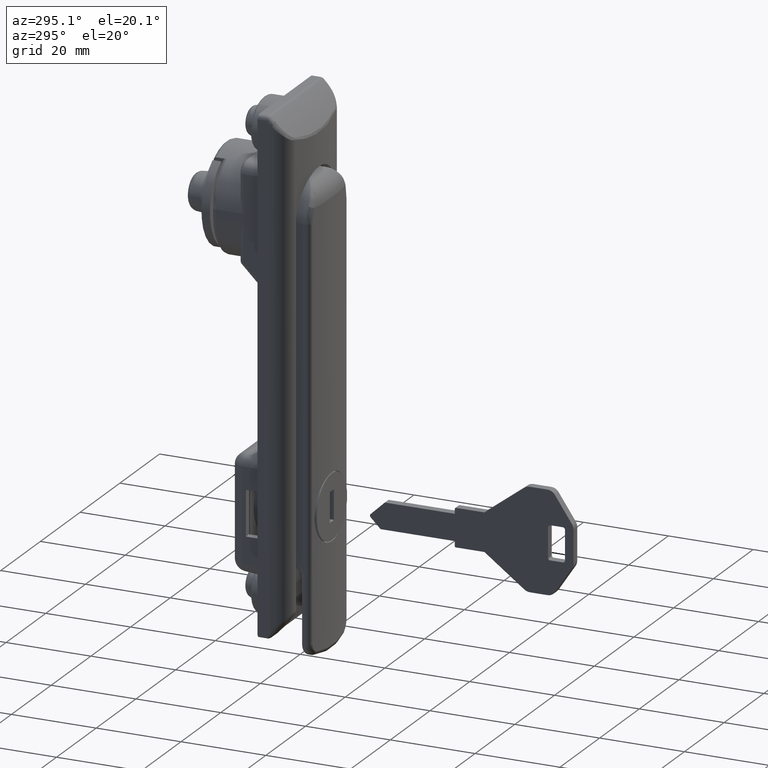
[diagram: clean part render]
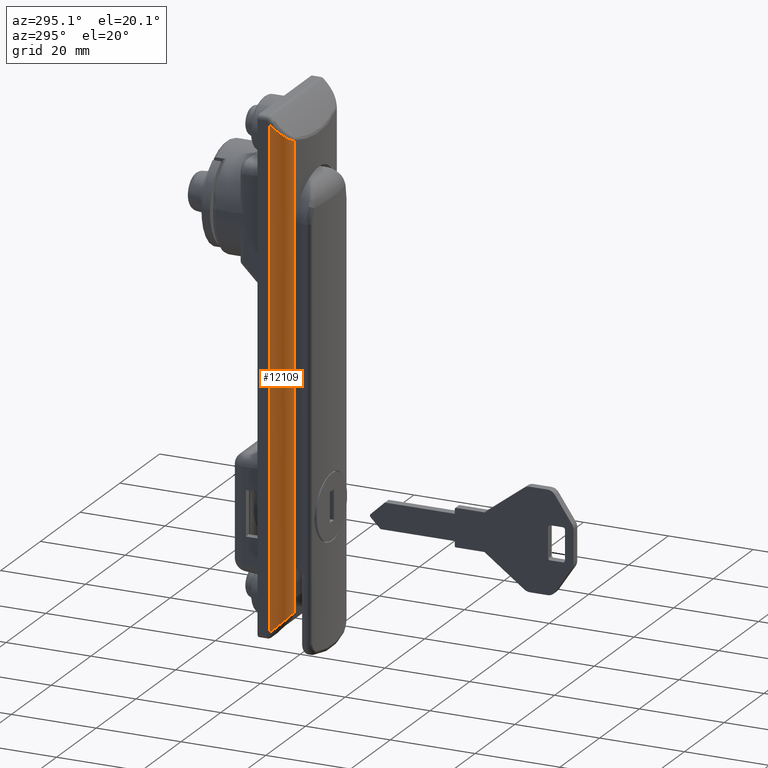
[diagram: same view with one face highlighted and labeled with its STEP entity id]
A machine part, auxiliary view. The second image highlights one B-rep face of the part: STEP entity #12109.
In plain terms, the highlighted cylindrical surface (edge-blend (fillet) strip) has radius 4.25 mm, axis along (0, 0, 1).
Its self-contained STEP definition (entity closure, byte-faithful):
#1137 = CARTESIAN_POINT ( 'NONE',  ( -23.57530118722025100, 10.49327354259759900, -88.17039646984149200 ) ) ;
#1138 = DIRECTION ( 'NONE',  ( 0.0000000000000000000, 0.0000000000000000000, -1.000000000000000000 ) ) ;
#1139 = VECTOR ( 'NONE', #1138, 1000.000000000000000 ) ;
#1140 = CARTESIAN_POINT ( 'NONE',  ( -23.57530118722025100, 10.49327354259759900, -965.0000000000000000 ) ) ;
#1141 = LINE ( 'NONE', #1140, #1139 ) ;
#1143 = CARTESIAN_POINT ( 'NONE',  ( -23.57530118722025100, 10.49327354259759900, 19.17039646983064900 ) ) ;
#11851 = VERTEX_POINT ( 'NONE', #16829 ) ;
#11852 = VERTEX_POINT ( 'NONE', #16828 ) ;
#12052 = EDGE_CURVE ( 'NONE', #11851, #11852, #17547, .T. ) ;
#12109 = ADVANCED_FACE ( 'NONE', ( #17726 ), #17629, .T. ) ;
#12113 = EDGE_LOOP ( 'NONE', ( #12115, #12116, #12118, #12119 ) ) ;
#12115 = ORIENTED_EDGE ( 'NONE', *, *, #12052, .F. ) ;
#12116 = ORIENTED_EDGE ( 'NONE', *, *, #12117, .T. ) ;
#12117 = EDGE_CURVE ( 'NONE', #11851, #21094, #17836, .T. ) ;
#12118 = ORIENTED_EDGE ( 'NONE', *, *, #21093, .F. ) ;
#12119 = ORIENTED_EDGE ( 'NONE', *, *, #12122, .T. ) ;
#12122 = EDGE_CURVE ( 'NONE', #21091, #11852, #17843, .T. ) ;
#16828 = CARTESIAN_POINT ( 'NONE',  ( -19.39080068645860100, 14.00000000000000000, 23.18500777389960300 ) ) ;
#16829 = CARTESIAN_POINT ( 'NONE',  ( -19.39080068645860100, 14.00000000000000000, -92.18500777391041400 ) ) ;
#17544 = DIRECTION ( 'NONE',  ( 0.0000000000000000000, 0.0000000000000000000, 1.000000000000000000 ) ) ;
#17545 = VECTOR ( 'NONE', #17544, 1000.000000000000000 ) ;
#17546 = CARTESIAN_POINT ( 'NONE',  ( -19.39080068645860100, 14.00000000000000000, 20.56078290761319800 ) ) ;
#17547 = LINE ( 'NONE', #17546, #17545 ) ;
#17626 = DIRECTION ( 'NONE',  ( 1.000000000000000000, 0.0000000000000000000, 0.0000000000000000000 ) ) ;
#17627 = DIRECTION ( 'NONE',  ( 0.0000000000000000000, 0.0000000000000000000, 1.000000000000000000 ) ) ;
#17628 = AXIS2_PLACEMENT_3D ( 'NONE', #17725, #17627, #17626 ) ;
#17629 = CYLINDRICAL_SURFACE ( 'NONE', #17628, 4.250000000000000000 ) ;
#17725 = CARTESIAN_POINT ( 'NONE',  ( -19.39080068645860100, 9.750000000000000000, -965.0000000000000000 ) ) ;
#17726 = FACE_OUTER_BOUND ( 'NONE', #12113, .T. ) ;
#17736 = CARTESIAN_POINT ( 'NONE',  ( -19.39080068645860100, 14.00000000000000000, 23.18500777389960300 ) ) ;
#17737 = CARTESIAN_POINT ( 'NONE',  ( -19.86189103008241500, 13.99999999999999800, 22.80281732134584200 ) ) ;
#17738 = CARTESIAN_POINT ( 'NONE',  ( -20.31514022013296000, 13.92377458077721300, 22.41566502509876100 ) ) ;
#17739 = CARTESIAN_POINT ( 'NONE',  ( -20.96988927472122600, 13.70247437519620000, 21.82786959137136800 ) ) ;
#17740 = CARTESIAN_POINT ( 'NONE',  ( -21.18209323709717800, 13.61091536866677400, 21.63237253427319100 ) ) ;
#17741 = CARTESIAN_POINT ( 'NONE',  ( -21.58828543300062800, 13.39505929645810900, 21.24911422026432800 ) ) ;
#17742 = CARTESIAN_POINT ( 'NONE',  ( -21.78333737550884700, 13.27044951550170300, 21.06039427926945300 ) ) ;
#17743 = CARTESIAN_POINT ( 'NONE',  ( -22.15711664230133900, 12.98501045316666400, 20.69045291302422000 ) ) ;
#17744 = CARTESIAN_POINT ( 'NONE',  ( -22.33678879186818700, 12.82327668294235900, 20.50823866341987800 ) ) ;
#17745 = CARTESIAN_POINT ( 'NONE',  ( -22.67391715109648900, 12.46017006233106400, 20.15902335442187300 ) ) ;
#17746 = CARTESIAN_POINT ( 'NONE',  ( -22.82903307428881900, 12.26168852318555500, 19.99449278256544100 ) ) ;
#17747 = CARTESIAN_POINT ( 'NONE',  ( -23.10941266699964200, 11.82411333547696200, 19.69186873087628300 ) ) ;
#17748 = CARTESIAN_POINT ( 'NONE',  ( -23.23607330387387600, 11.58140819865317400, 19.55217828795844800 ) ) ;
#17749 = CARTESIAN_POINT ( 'NONE',  ( -23.44231375410948500, 11.06355218967198100, 19.32186588850131800 ) ) ;
#17750 = CARTESIAN_POINT ( 'NONE',  ( -23.52282482011764100, 10.78870634335569200, 19.23032368122743200 ) ) ;
#17751 = CARTESIAN_POINT ( 'NONE',  ( -23.57530118722025100, 10.49327354259759900, 19.17039646983064900 ) ) ;
#17756 = CARTESIAN_POINT ( 'NONE',  ( -23.57530118722025100, 10.49327354259759900, -88.17039646984149200 ) ) ;
#17757 = CARTESIAN_POINT ( 'NONE',  ( -23.52285804401962500, 10.78851929857807200, -88.23028574004857200 ) ) ;
#17758 = CARTESIAN_POINT ( 'NONE',  ( -23.44224771184143900, 11.06400672587118300, -88.32194614805459300 ) ) ;
#17759 = CARTESIAN_POINT ( 'NONE',  ( -23.28676315785112300, 11.45398374120195200, -88.49556873850451700 ) ) ;
#17760 = CARTESIAN_POINT ( 'NONE',  ( -23.22883440713878800, 11.58037871080186300, -88.55982540278586200 ) ) ;
#17761 = CARTESIAN_POINT ( 'NONE',  ( -23.10470065902877200, 11.82068492527910300, -88.69624542490682000 ) ) ;
#17762 = CARTESIAN_POINT ( 'NONE',  ( -23.03824442203168500, 11.93533212029634200, -88.76869302507880400 ) ) ;
#17763 = CARTESIAN_POINT ( 'NONE',  ( -22.82687091705975400, 12.26475853533839800, -88.99680661979402900 ) ) ;
#17764 = CARTESIAN_POINT ( 'NONE',  ( -22.66863166608348800, 12.46643322996741600, -89.16456724342120300 ) ) ;
#17765 = CARTESIAN_POINT ( 'NONE',  ( -22.33282753381833200, 12.82695684943327500, -89.51227111375170900 ) ) ;
#17833 = CARTESIAN_POINT ( 'NONE',  ( -20.31298589977895800, 13.92361731942010100, -91.41737761025233100 ) ) ;
#17834 = CARTESIAN_POINT ( 'NONE',  ( -19.86253578521249700, 13.99999999999999800, -91.80229423855885800 ) ) ;
#17835 = CARTESIAN_POINT ( 'NONE',  ( -19.39080068645860100, 14.00000000000000000, -92.18500777391041400 ) ) ;
#17836 = B_SPLINE_CURVE_WITH_KNOTS ( 'NONE', 3,
 ( #17835, #17834, #17833, #17841, #17840, #17839, #17838, #17837, #17765, #17764, #17763, #17762, #17761, #17760, #17759, #17758, #17757, #17756 ),
 .UNSPECIFIED., .F., .F.,
 ( 4, 2, 2, 2, 2, 2, 2, 2, 4 ),
 ( 0.0000000000000000000, 0.001788862476229327500, 0.002683293714343978300, 0.003577724952458629300, 0.004472156190573280800, 0.005366587428687931400, 0.005813803047745261100, 0.006261018666802590700, 0.007155449904917233500 ),
 .UNSPECIFIED. ) ;
#17837 = CARTESIAN_POINT ( 'NONE',  ( -22.15478059702372700, 12.98704672081881900, -89.69280943928231400 ) ) ;
#17838 = CARTESIAN_POINT ( 'NONE',  ( -21.77987904439224200, 13.27283423090337200, -90.06377194110125100 ) ) ;
#17839 = CARTESIAN_POINT ( 'NONE',  ( -21.58247654587230400, 13.39873681008631600, -90.25472590576325200 ) ) ;
#17840 = CARTESIAN_POINT ( 'NONE',  ( -21.17072245678226800, 13.61634218267647300, -90.64296496712651700 ) ) ;
#17841 = CARTESIAN_POINT ( 'NONE',  ( -20.95992327333277300, 13.70627426773206300, -90.83692439242710700 ) ) ;
#17843 = B_SPLINE_CURVE_WITH_KNOTS ( 'NONE', 3,
 ( #17751, #17750, #17749, #17748, #17747, #17746, #17745, #17744, #17743, #17742, #17741, #17740, #17739, #17738, #17737, #17736 ),
 .UNSPECIFIED., .F., .F.,
 ( 4, 2, 2, 2, 2, 2, 2, 4 ),
 ( 0.0000000000000000000, 0.0009014252129092932500, 0.001802850425818586500, 0.002704275638727879500, 0.003605700851637173000, 0.004507126064546466400, 0.005408551277455759000, 0.007211401703274346000 ),
 .UNSPECIFIED. ) ;
#21091 = VERTEX_POINT ( 'NONE', #1143 ) ;
#21093 = EDGE_CURVE ( 'NONE', #21091, #21094, #1141, .T. ) ;
#21094 = VERTEX_POINT ( 'NONE', #1137 ) ;